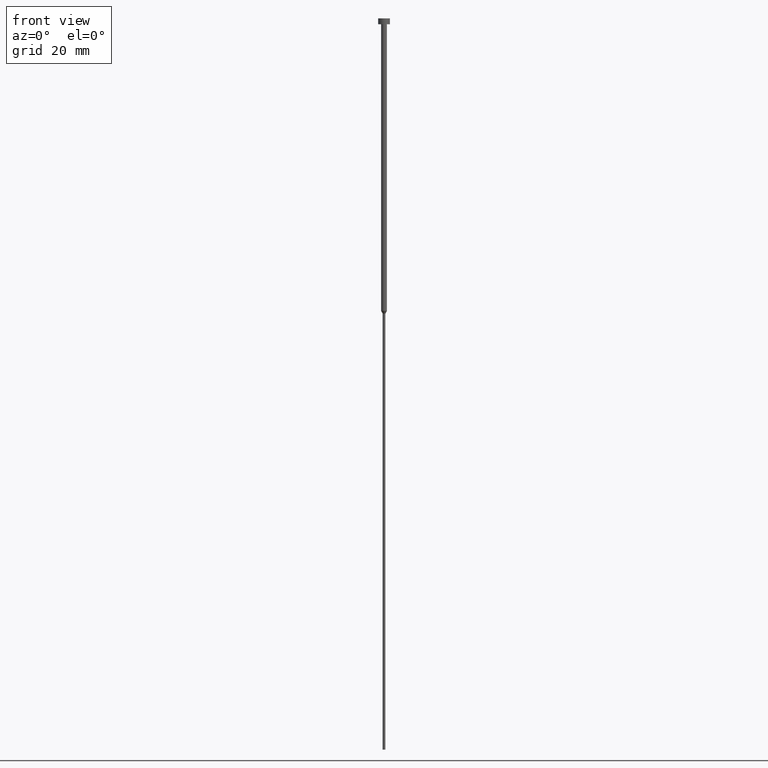
[diagram: clean part render]
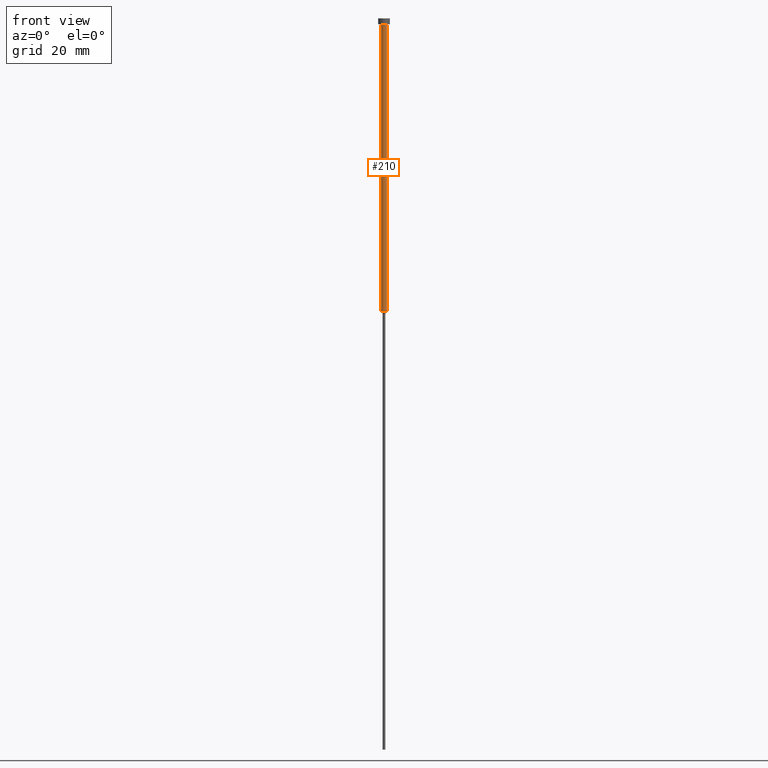
[diagram: same view with one face highlighted and labeled with its STEP entity id]
A machine part, front view. The second image highlights one B-rep face of the part: STEP entity #210.
In plain terms, the highlighted cylindrical surface (edge-blend (fillet) strip) has radius 1 mm, axis along (-0, -0, 1).
Its self-contained STEP definition (entity closure, byte-faithful):
#3 = DIRECTION ( 'NONE',  ( -0.000000000000000000, -0.000000000000000000, 1.000000000000000000 ) ) ;
#5 = FACE_OUTER_BOUND ( 'NONE', #132, .T. ) ;
#8 = CARTESIAN_POINT ( 'NONE',  ( 0.000000000000000000, 0.000000000000000000, 0.000000000000000000 ) ) ;
#9 = EDGE_CURVE ( 'NONE', #50, #158, #192, .T. ) ;
#12 = CIRCLE ( 'NONE', #309, 1.000000000000003109 ) ;
#14 = DIRECTION ( 'NONE',  ( 1.000000000000000000, 0.000000000000000000, 0.000000000000000000 ) ) ;
#17 = CARTESIAN_POINT ( 'NONE',  ( -1.000000000000003553, 1.224646799147357398E-16, -2.000000000000000444 ) ) ;
#50 = VERTEX_POINT ( 'NONE', #136 ) ;
#51 = ORIENTED_EDGE ( 'NONE', *, *, #9, .T. ) ;
#83 = VERTEX_POINT ( 'NONE', #17 ) ;
#106 = VECTOR ( 'NONE', #118, 1000.000000000000000 ) ;
#109 = AXIS2_PLACEMENT_3D ( 'NONE', #238, #146, #111 ) ;
#111 = DIRECTION ( 'NONE',  ( 1.000000000000000000, 0.000000000000000000, 0.000000000000000000 ) ) ;
#112 = CYLINDRICAL_SURFACE ( 'NONE', #232, 1.000000000000003331 ) ;
#118 = DIRECTION ( 'NONE',  ( -0.000000000000000000, -0.000000000000000000, 1.000000000000000000 ) ) ;
#132 = EDGE_LOOP ( 'NONE', ( #222, #321, #51, #187 ) ) ;
#136 = CARTESIAN_POINT ( 'NONE',  ( 1.000000000000003109, 0.000000000000000000, -100.0000000000000000 ) ) ;
#140 = CIRCLE ( 'NONE', #109, 1.000000000000003553 ) ;
#144 = CARTESIAN_POINT ( 'NONE',  ( -1.000000000000003331, 1.224646799147357151E-16, 0.000000000000000000 ) ) ;
#146 = DIRECTION ( 'NONE',  ( -0.000000000000000000, -0.000000000000000000, 1.000000000000000000 ) ) ;
#149 = DIRECTION ( 'NONE',  ( 1.000000000000000000, 0.000000000000000000, 0.000000000000000000 ) ) ;
#158 = VERTEX_POINT ( 'NONE', #212 ) ;
#171 = LINE ( 'NONE', #144, #106 ) ;
#174 = VERTEX_POINT ( 'NONE', #193 ) ;
#187 = ORIENTED_EDGE ( 'NONE', *, *, #205, .F. ) ;
#192 = LINE ( 'NONE', #256, #334 ) ;
#193 = CARTESIAN_POINT ( 'NONE',  ( -1.000000000000003109, 1.224646799147356905E-16, -100.0000000000000000 ) ) ;
#194 = CARTESIAN_POINT ( 'NONE',  ( 0.000000000000000000, 0.000000000000000000, -100.0000000000000000 ) ) ;
#205 = EDGE_CURVE ( 'NONE', #83, #158, #140, .T. ) ;
#210 = ADVANCED_FACE ( 'NONE', ( #5 ), #112, .T. ) ;
#212 = CARTESIAN_POINT ( 'NONE',  ( 1.000000000000003553, 0.000000000000000000, -2.000000000000000444 ) ) ;
#222 = ORIENTED_EDGE ( 'NONE', *, *, #250, .F. ) ;
#228 = EDGE_CURVE ( 'NONE', #174, #50, #12, .T. ) ;
#232 = AXIS2_PLACEMENT_3D ( 'NONE', #8, #340, #149 ) ;
#238 = CARTESIAN_POINT ( 'NONE',  ( 0.000000000000000000, 0.000000000000000000, -2.000000000000000444 ) ) ;
#250 = EDGE_CURVE ( 'NONE', #174, #83, #171, .T. ) ;
#256 = CARTESIAN_POINT ( 'NONE',  ( 1.000000000000003331, 0.000000000000000000, 0.000000000000000000 ) ) ;
#309 = AXIS2_PLACEMENT_3D ( 'NONE', #194, #342, #14 ) ;
#321 = ORIENTED_EDGE ( 'NONE', *, *, #228, .T. ) ;
#334 = VECTOR ( 'NONE', #3, 1000.000000000000000 ) ;
#340 = DIRECTION ( 'NONE',  ( -0.000000000000000000, -0.000000000000000000, 1.000000000000000000 ) ) ;
#342 = DIRECTION ( 'NONE',  ( -0.000000000000000000, -0.000000000000000000, 1.000000000000000000 ) ) ;